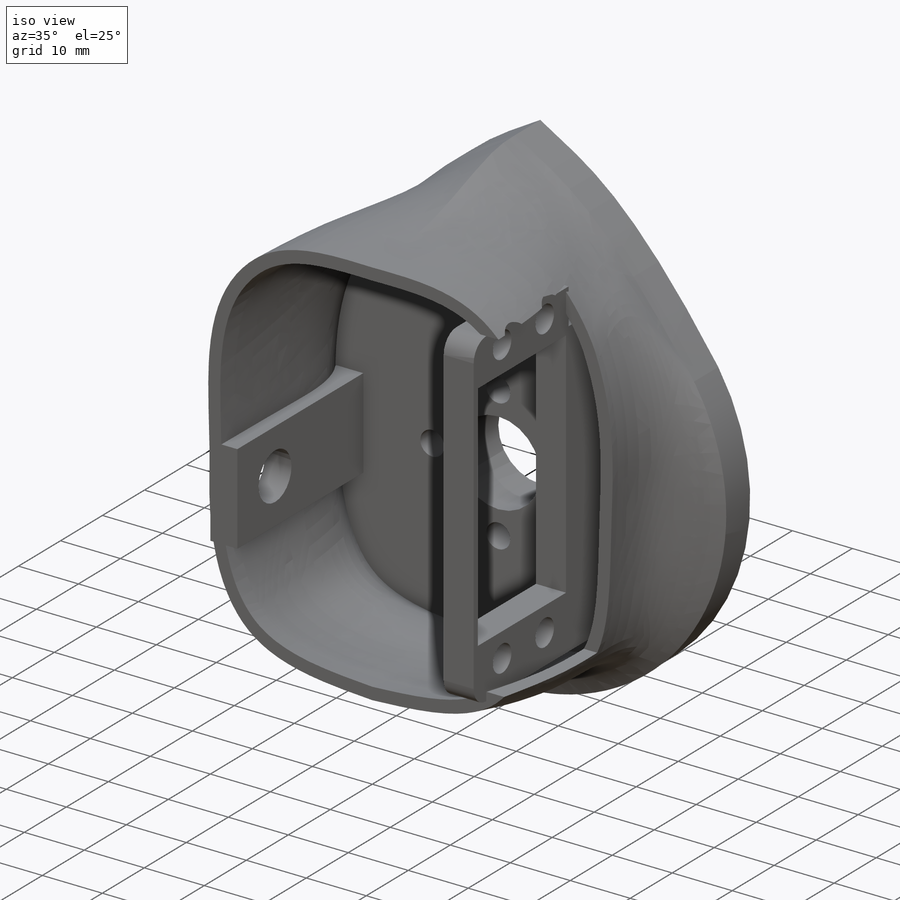
[diagram: iso view]
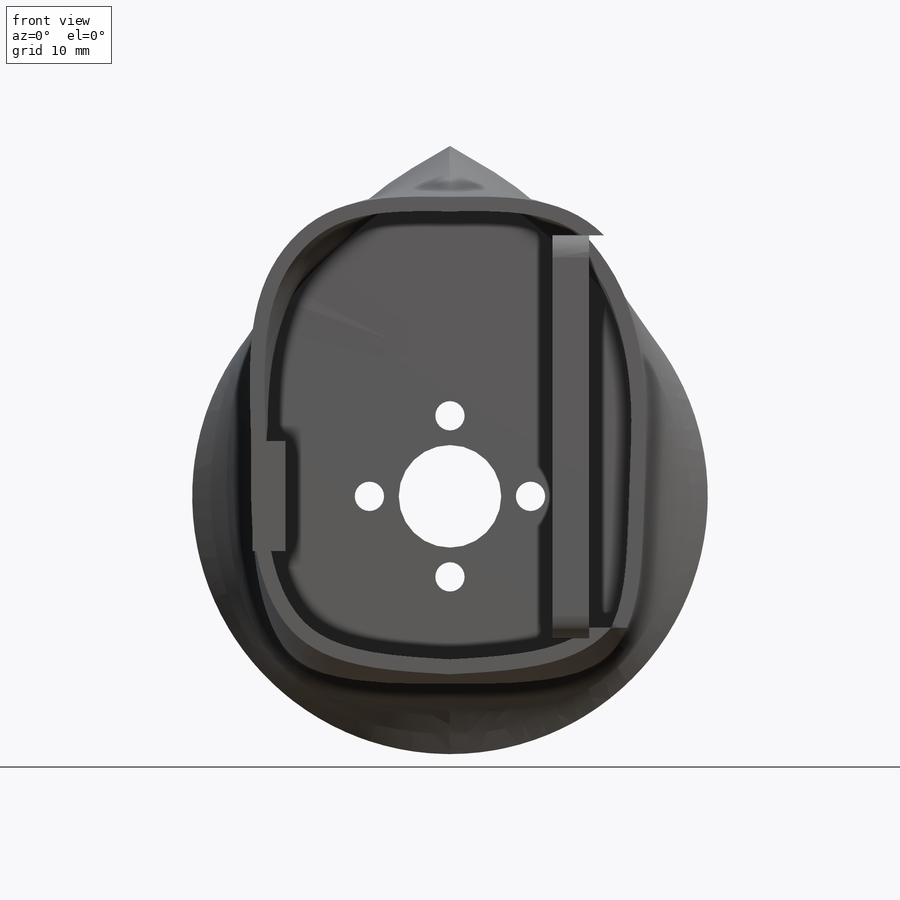
[diagram: front view]
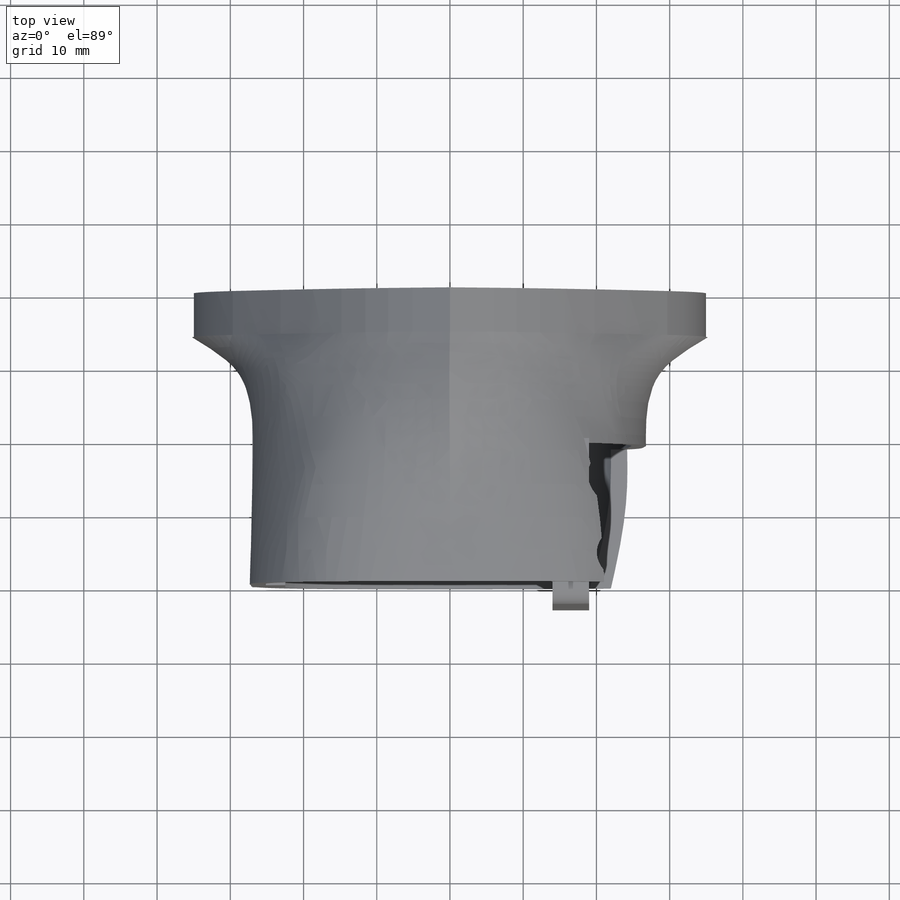
[diagram: top view]
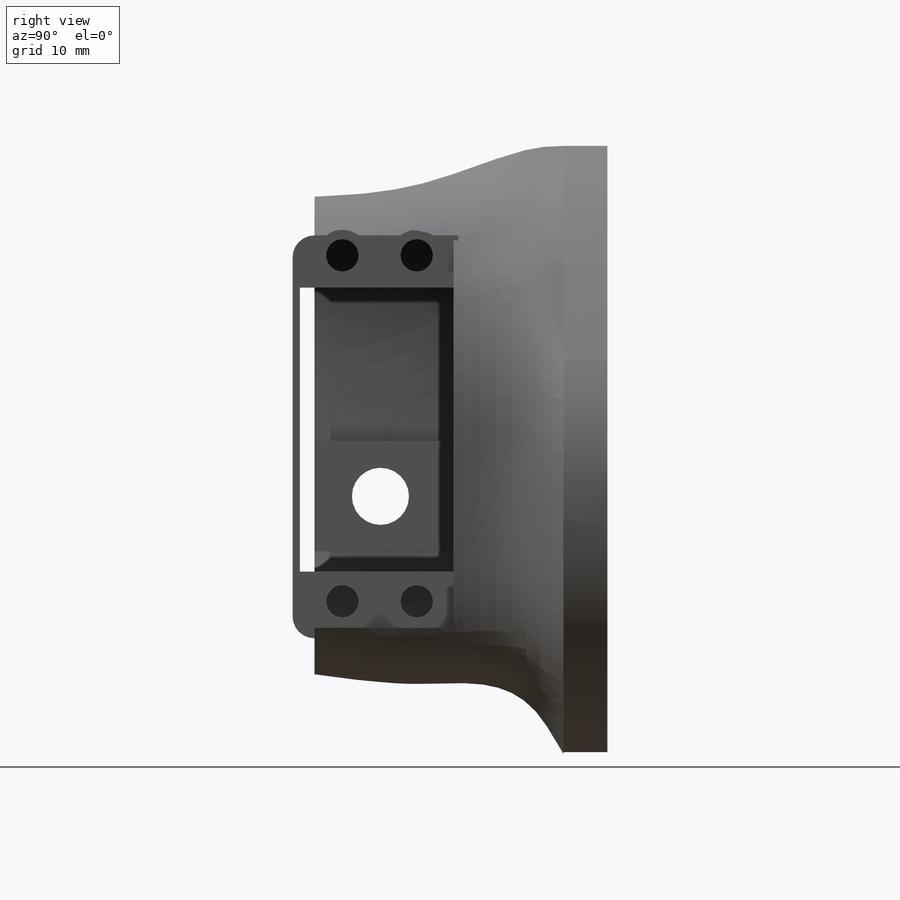
[diagram: right view]
SOLIDWORKS PART (.sldprt)
format: sldprt  version: not decoded by parser v0  size: 843,264 bytes
history: native  units: mm
features: sketch x15, cut_extrude x7, extrude x4, plane x4, material x1, shell x1, fillet x1 (+14 scaffold rows collapsed)
feature tree (47):
  scaffold x14  (default folders/planes/origin — collapsed)
  material  "PVC Rigid"
  sketch  "Sketch1"  dims[D1=70.0mm]
  extrude  "Extrude1"  Depth=6mm
  sketch  "Sketch18"  dims[D1=0.0mm]
  plane  "Plane1"  Offset=10mm
  plane  "Plane2"  Offset=25mm
  plane  "Plane3"  Offset=30mm
  plane  "Plane4"  Offset=40mm
  sketch  "Sketch19"
  sketch  "Sketch20"
  sketch  "Sketch21"
  shell  "Shell3"  Thickness=2mm
  sketch  "Sketch4"  dims[D1=14.0mm]
  cut_extrude  "Extrude5"  [1 undecoded]
  sketch  "Sketch5"  dims[D1=45.0mm D2=15.0mm D3=4.5mm D4=22.5mm]
  extrude  "Extrude7"  Depth=30mm
  sketch  "Sketch6"  dims[c1.D1=7.8mm c1.D2=6.0mm c1.D3=24.0mm c2.D2=9.0mm c2.D3=15.0mm]
  cut_extrude  "Extrude8"  Depth=30mm
  sketch  "Sketch13"  dims[D1=5.0mm D2=14.0mm]
  extrude  "Extrude14"  Depth=33mm
  sketch  "Sketch14"  dims[D3=8.0mm D1=21.0mm D2=15.0mm]
  cut_extrude  "Extrude15"  Depth=80mm
  sketch  "Sketch23"  dims[D1=6.0mm]
  extrude  "Extrude16"  Depth=5mm
  sketch  "Sketch15"  dims[c1.D2=4.4mm c1.D6=4.4mm c1.D1=10.15mm c1.D3=47.26mm c1.D4=4.4mm c1.D5=6.8mm c2.D6=10.26mm]
  cut_extrude  "Cut-Extrude1"  Depth=20mm
  sketch  "Sketch24"  dims[D1=7.0mm]
  cut_extrude  "Extrude17"  Depth=15mm
  fillet  "Fillet1"  Radius=3mm
  sketch  "Sketch25"
  cut_extrude  "Extrude18"  Depth=15mm
  sketch  "Sketch26"  dims[D1=4.0mm D2=11.0mm]
  cut_extrude  "Extrude19"  Depth=15mm
decode coverage: 23 of 28 modeling features carry decoded parameters
note: 1 parameter value undecoded
note: suppression state not decoded; provenance and decode notes live in map.json
